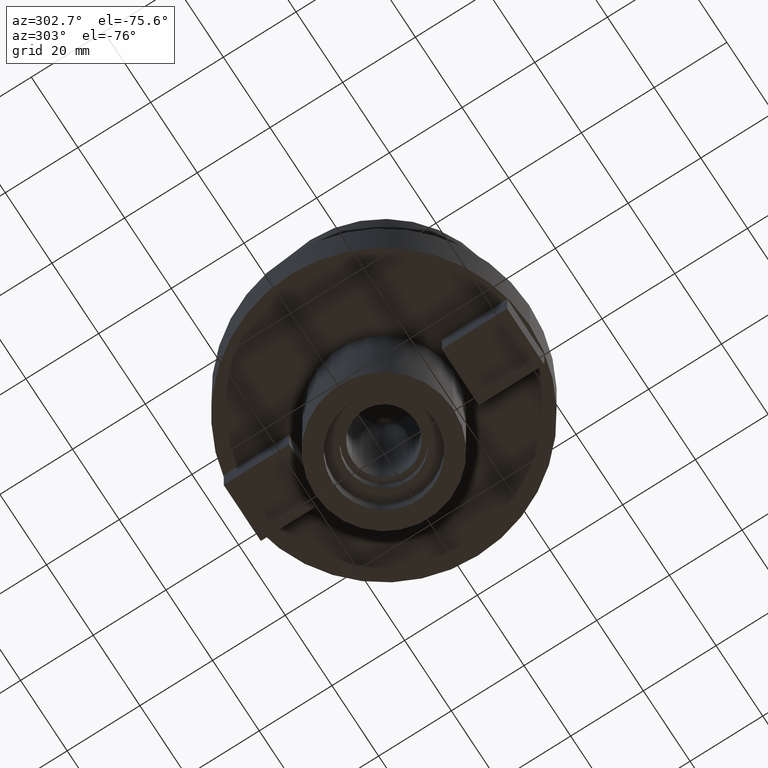
[diagram: clean part render]
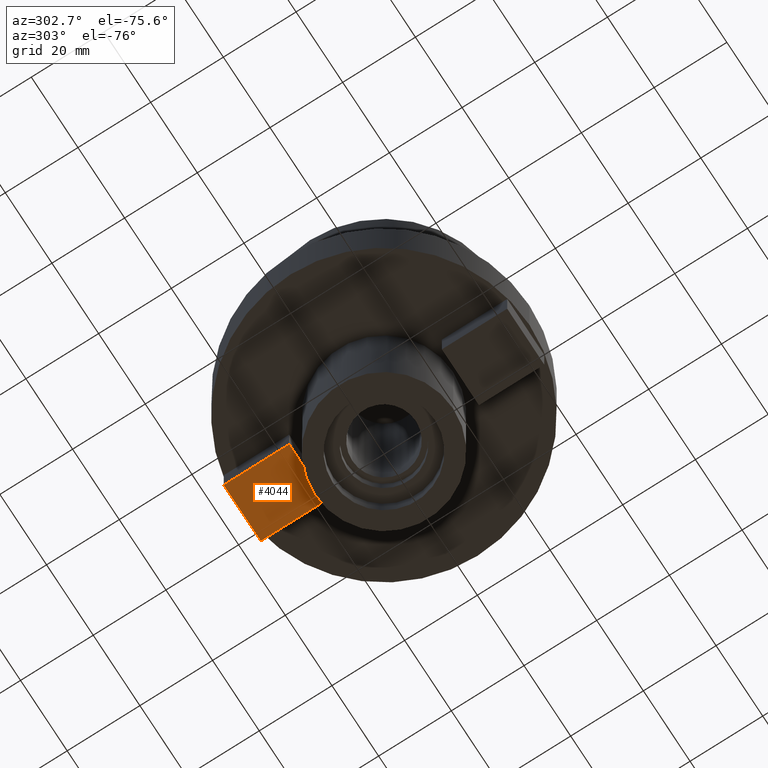
[diagram: same view with one face highlighted and labeled with its STEP entity id]
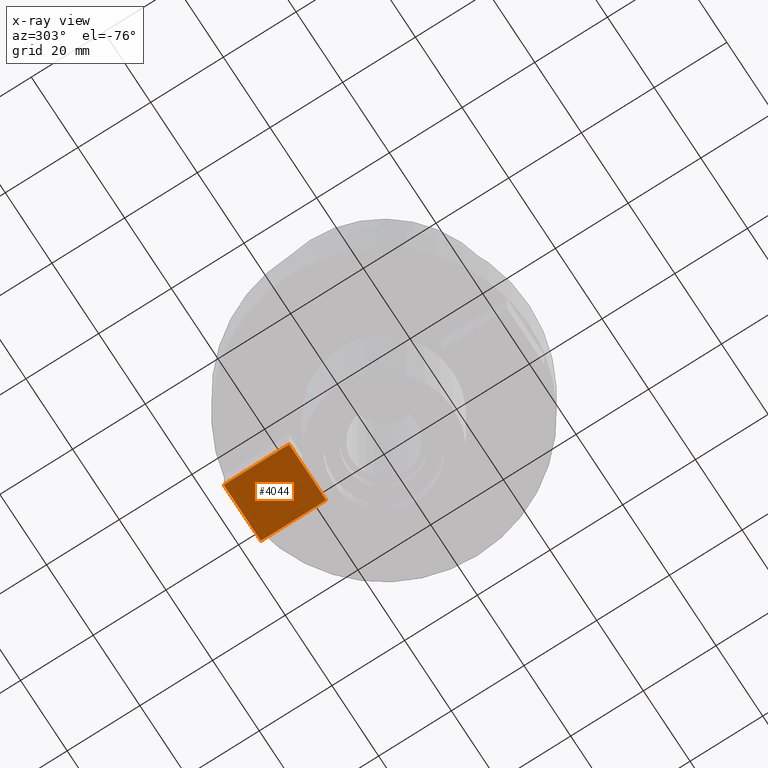
[diagram: x-ray of the same camera — body ghosted, the highlighted face saturated]
A machine part, auxiliary view. The second image highlights one B-rep face of the part: STEP entity #4044.
The next image is the same camera in x-ray: the body ghosted, the highlighted face saturated — about 4% of this face is hidden behind the body in this view.
In plain terms, the highlighted planar face has unit normal (0, 0, -1).
Its self-contained STEP definition (entity closure, byte-faithful):
#2029=DIRECTION('',(-1.E0,0.E0,0.E0));
#2030=VECTOR('',#2029,1.59E1);
#2031=CARTESIAN_POINT('',(7.95E0,2.1E1,-6.9E1));
#2032=LINE('',#2031,#2030);
#2057=DIRECTION('',(0.E0,-1.E0,0.E0));
#2058=VECTOR('',#2057,1.8E1);
#2059=CARTESIAN_POINT('',(7.95E0,3.9E1,-6.9E1));
#2060=LINE('',#2059,#2058);
#2085=DIRECTION('',(0.E0,-1.E0,0.E0));
#2086=VECTOR('',#2085,1.8E1);
#2087=CARTESIAN_POINT('',(-7.95E0,3.9E1,-6.9E1));
#2088=LINE('',#2087,#2086);
#2092=DIRECTION('',(-1.E0,0.E0,0.E0));
#2093=VECTOR('',#2092,1.59E1);
#2094=CARTESIAN_POINT('',(7.95E0,3.9E1,-6.9E1));
#2095=LINE('',#2094,#2093);
#2487=CARTESIAN_POINT('',(-7.95E0,2.1E1,-6.9E1));
#2488=VERTEX_POINT('',#2487);
#2489=CARTESIAN_POINT('',(-7.95E0,3.9E1,-6.9E1));
#2490=VERTEX_POINT('',#2489);
#2491=CARTESIAN_POINT('',(7.95E0,2.1E1,-6.9E1));
#2492=VERTEX_POINT('',#2491);
#2493=CARTESIAN_POINT('',(7.95E0,3.9E1,-6.9E1));
#2494=VERTEX_POINT('',#2493);
#4033=CARTESIAN_POINT('',(-7.95E0,2.1E1,-6.9E1));
#4034=DIRECTION('',(0.E0,0.E0,-1.E0));
#4035=DIRECTION('',(0.E0,1.E0,0.E0));
#4036=AXIS2_PLACEMENT_3D('',#4033,#4034,#4035);
#4037=PLANE('',#4036);
#4038=ORIENTED_EDGE('',*,*,#3985,.T.);
#4039=ORIENTED_EDGE('',*,*,#4000,.F.);
#4040=ORIENTED_EDGE('',*,*,#4014,.F.);
#4041=ORIENTED_EDGE('',*,*,#4027,.T.);
#4042=EDGE_LOOP('',(#4038,#4039,#4040,#4041));
#4043=FACE_OUTER_BOUND('',#4042,.F.);
#3985=EDGE_CURVE('',#2490,#2488,#2088,.T.);
#4000=EDGE_CURVE('',#2492,#2488,#2032,.T.);
#4014=EDGE_CURVE('',#2494,#2492,#2060,.T.);
#4027=EDGE_CURVE('',#2494,#2490,#2095,.T.);
#4044=ADVANCED_FACE('',(#4043),#4037,.T.);